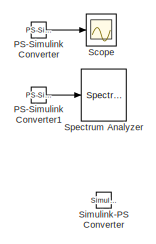
[diagram: root canvas - part 1/2, top right region]
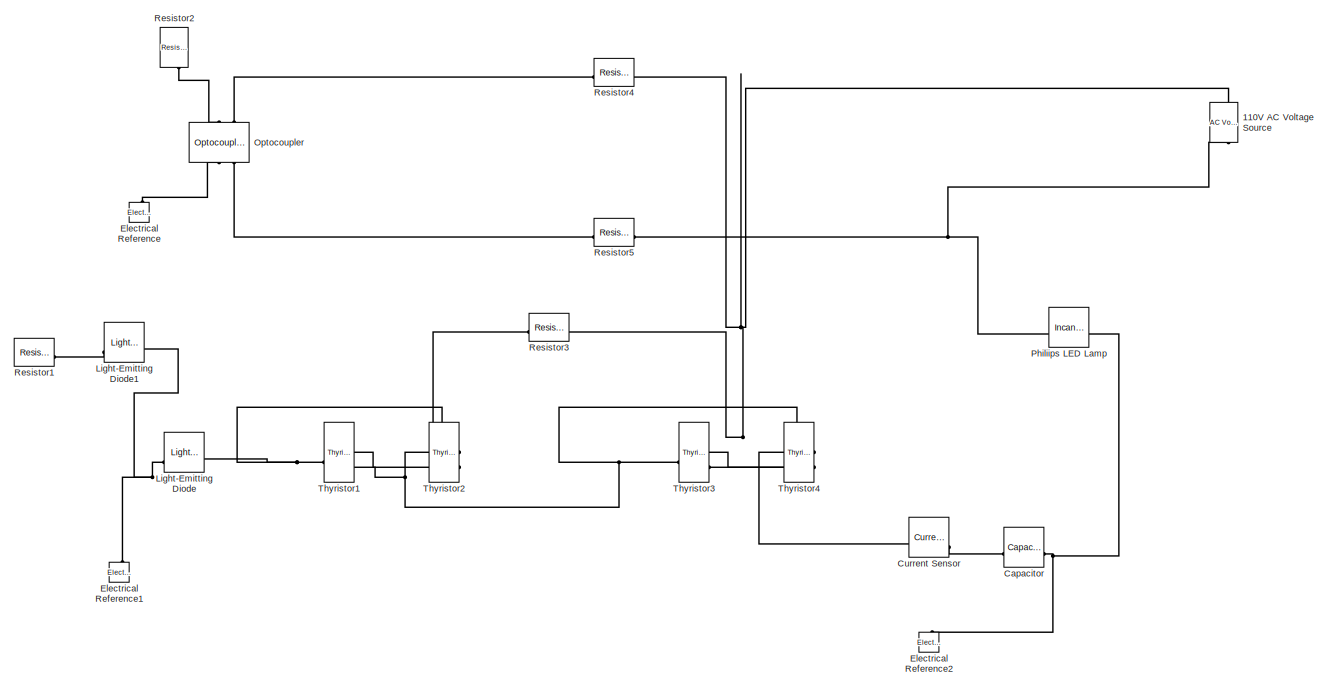
[diagram: root canvas - part 2/2, most of the canvas]
MODEL slx_89ed52d11438
KIND model
CONFIG AbsTol = 1e-3
CONFIG EnableMultiTasking = off
CONFIG FixedStep = auto
CONFIG MaxStep = auto
CONFIG MinStep = auto
CONFIG RelTol = 1e-3
CONFIG SampleTimeConstraint = Unconstrained
CONFIG SolverName = VariableStepAuto
CONFIG StartTime = 0.0
CONFIG StopTime = 10.0
BLOCK [Reference] 110V AC Voltage Source  REF=fl_lib/Electrical/Electrical Sources/AC Voltage Source
  NameLocation = right
  SourceBlock = fl_lib/Electrical/Electrical Sources/AC Voltage Source
  SourceType = AC Voltage Source
BLOCK [Reference] Capacitor  REF=fl_lib/Electrical/Electrical Elements/Capacitor
  SourceBlock = fl_lib/Electrical/Electrical Elements/Capacitor
  SourceType = Capacitor
BLOCK [Reference] Current Sensor  REF=fl_lib/Electrical/Electrical Sensors/Current Sensor
  SourceBlock = fl_lib/Electrical/Electrical Sensors/Current Sensor
  SourceType = Current Sensor
BLOCK [Reference] Electrical Reference  REF=fl_lib/Electrical/Electrical Elements/Electrical Reference
  SourceBlock = fl_lib/Electrical/Electrical Elements/Electrical Reference
  SourceType = Electrical Reference
BLOCK [Reference] Electrical Reference1  REF=fl_lib/Electrical/Electrical Elements/Electrical Reference
  SourceBlock = fl_lib/Electrical/Electrical Elements/Electrical Reference
  SourceType = Electrical Reference
BLOCK [Reference] Electrical Reference2  REF=fl_lib/Electrical/Electrical Elements/Electrical Reference
  SourceBlock = fl_lib/Electrical/Electrical Elements/Electrical Reference
  SourceType = Electrical Reference
BLOCK [Reference] Light-Emitting Diode  REF=ee_lib/Sensors &
Transducers/Light-Emitting Diode
  SourceBlock = ee_lib/Sensors &\nTransducers/Light-Emitting Diode
  SourceType = Light-Emitting Diode
BLOCK [Reference] Light-Emitting Diode1  REF=ee_lib/Sensors &
Transducers/Light-Emitting Diode
  SourceBlock = ee_lib/Sensors &\nTransducers/Light-Emitting Diode
  SourceType = Light-Emitting Diode
BLOCK [Reference] Optocoupler  REF=ee_lib/Semiconductors &
Converters/Optocoupler
  NameLocation = right
  SourceBlock = ee_lib/Semiconductors &\nConverters/Optocoupler
  SourceType = Optocoupler
BLOCK [Reference] PS-Simulink Converter  REF=nesl_utility/PS-Simulink
Converter
  SourceBlock = nesl_utility/PS-Simulink\nConverter
  SourceType = PS-Simulink\nConverter
BLOCK [Reference] PS-Simulink Converter1  REF=nesl_utility/PS-Simulink
Converter
  SourceBlock = nesl_utility/PS-Simulink\nConverter
  SourceType = PS-Simulink\nConverter
BLOCK [Reference] Philiips LED Lamp  REF=ee_lib/Passive/Incandescent Lamp
  SourceBlock = ee_lib/Passive/Incandescent Lamp
  SourceType = Incandescent Lamp
BLOCK [Reference] Resistor1  REF=fl_lib/Electrical/Electrical Elements/Resistor
  SourceBlock = fl_lib/Electrical/Electrical Elements/Resistor
  SourceType = Resistor
BLOCK [Reference] Resistor2  REF=fl_lib/Electrical/Electrical Elements/Resistor
  NameLocation = left
  SourceBlock = fl_lib/Electrical/Electrical Elements/Resistor
  SourceType = Resistor
BLOCK [Reference] Resistor3  REF=fl_lib/Electrical/Electrical Elements/Resistor
  SourceBlock = fl_lib/Electrical/Electrical Elements/Resistor
  SourceType = Resistor
BLOCK [Reference] Resistor4  REF=fl_lib/Electrical/Electrical Elements/Resistor
  SourceBlock = fl_lib/Electrical/Electrical Elements/Resistor
  SourceType = Resistor
BLOCK [Reference] Resistor5  REF=fl_lib/Electrical/Electrical Elements/Resistor
  SourceBlock = fl_lib/Electrical/Electrical Elements/Resistor
  SourceType = Resistor
BLOCK [Scope] Scope
  Floating = off
  GraphicalSettings = {"GraphicalSettings":{"LegacySettings":true,"Style":{"Style":{"CurrentConfiguration":"extmgr.ConfigurationSet","MinimizeControls":"false","PlotType":"Auto","Version":"2019b"}}}}
  NumInputPorts = 1
  WasSavedAsWebScope = on
BLOCK [Reference] Simulink-PS Converter  REF=nesl_utility/Simulink-PS
Converter
  SourceBlock = nesl_utility/Simulink-PS\nConverter
  SourceType = Simulink-PS\nConverter
BLOCK [SpectrumAnalyzer] Spectrum Analyzer
  AllowFFTLengthLessThanSamplesPerUpdate = on
  AveragingMethod = Running
  AxesScalingNumUpdates = 10
  GraphicalSettings = {"GraphicalSettings":{"Style":{"AutoDisplayLimits":"false","AutoscaleXAnchor":"Center","AutoscaleXAxis":"false","AutoscaleYAnchor":"Center","AxesColor":"[0 0 0]","BackgroundColor":"[0.156862745098039 0.156862745098039 0.156862745098039]","CFEditBoxDirtyState":"false","Compact":"false","DataLogging":"false","DataLoggingDecimateData":"false","DataLoggingDecimation":"2","DataLoggingLimitDataPoints":"...<+2978ch>
  Method = Welch
  PlotAsTwoSidedSpectrum = off
  SampleRate = 10e3
  ScopeSpecificationString = spbscopes.SpectrumAnalyzerBlockCfg('CurrentConfiguration', extmgr.ConfigurationSet(extmgr.Configuration('Core','General UI',true,'ShowNewAction',false,'ShowLoadConfigSet',false,'ShowSaveConfigSet',false,'ShowConfiguration',false,'ShowCloseAll',false,'DisplayFullSourceName',false,'MessageLogAutoOpenMode','for warn/fail messages','MessageLogDialogPosition',[20 520 450 500],'ShowMainToolbar',true,'Sh...<+8095ch>
  SegLen = 128
  ShowGrid = off
  Span = 10e3
  StartFrequency = -5e3
  StopFrequency = 5e3
  WasSavedAsWebScope = on
BLOCK [Reference] Thyristor1  REF=ee_lib/Semiconductors &
Converters/Thyristor
  SourceBlock = ee_lib/Semiconductors &\nConverters/Thyristor
  SourceType = Thyristor
BLOCK [Reference] Thyristor2  REF=ee_lib/Semiconductors &
Converters/Thyristor
  NameLocation = top
  SourceBlock = ee_lib/Semiconductors &\nConverters/Thyristor
  SourceType = Thyristor
BLOCK [Reference] Thyristor3  REF=ee_lib/Semiconductors &
Converters/Thyristor
  SourceBlock = ee_lib/Semiconductors &\nConverters/Thyristor
  SourceType = Thyristor
BLOCK [Reference] Thyristor4  REF=ee_lib/Semiconductors &
Converters/Thyristor
  NameLocation = top
  SourceBlock = ee_lib/Semiconductors &\nConverters/Thyristor
  SourceType = Thyristor
LINE PS-Simulink Converter1:1 -> Spectrum Analyzer:1
LINE PS-Simulink Converter:1 -> Scope:1
PNET net1: 110V AC Voltage Source:LConn1 -- Resistor3:RConn1 -- Resistor4:RConn1 -- Thyristor3:RConn1 -- Thyristor4:RConn2
PNET net2: 110V AC Voltage Source:RConn1 -- Philiips LED Lamp:LConn1 -- Resistor5:RConn1
PLINE Capacitor:LConn1 -- Current Sensor:RConn2
PNET net3: Capacitor:RConn1 -- Electrical Reference2:LConn1 -- Philiips LED Lamp:RConn1
PNET net4: Current Sensor:LConn1 -- Thyristor3:RConn2 -- Thyristor4:RConn1
PNET net5: Electrical Reference1:LConn1 -- Light-Emitting Diode1:RConn1 -- Light-Emitting Diode:LConn2
PLINE Electrical Reference:LConn1 -- Optocoupler:RConn1
PLINE Light-Emitting Diode1:LConn2 -- Resistor1:RConn1
PNET net6: Light-Emitting Diode:RConn1 -- Thyristor1:LConn1 -- Thyristor2:LConn1
PLINE Optocoupler:LConn1 -- Resistor2:RConn1
PLINE Optocoupler:LConn2 -- Resistor4:LConn1
PLINE Optocoupler:RConn2 -- Resistor5:LConn1
PNET net7: Resistor3:LConn1 -- Thyristor1:RConn1 -- Thyristor2:RConn2
PNET net8: Thyristor1:RConn2 -- Thyristor2:RConn1 -- Thyristor3:LConn1 -- Thyristor4:LConn1
note: PNET lines group multi-terminal physical nets as a canonical sorted terminal list (undirected conserving connections); 2-terminal nets keep the pairwise PLINE form
